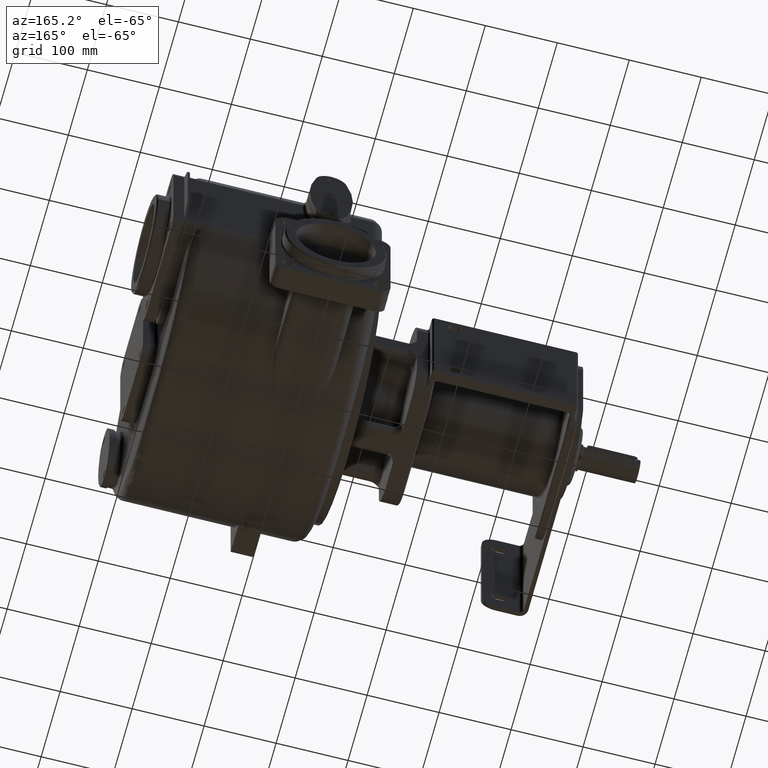
[diagram: clean part render]
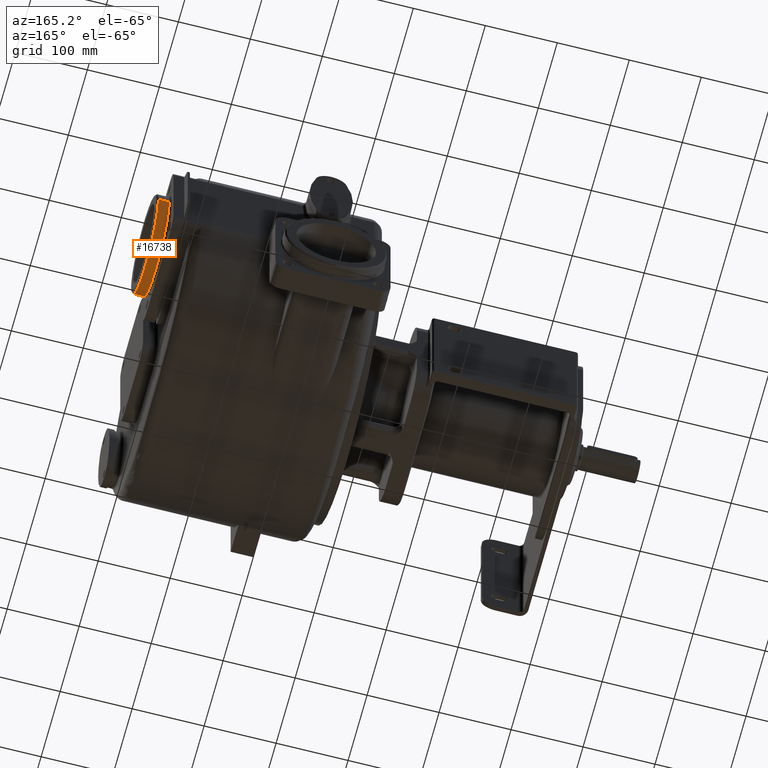
[diagram: same view with one face highlighted and labeled with its STEP entity id]
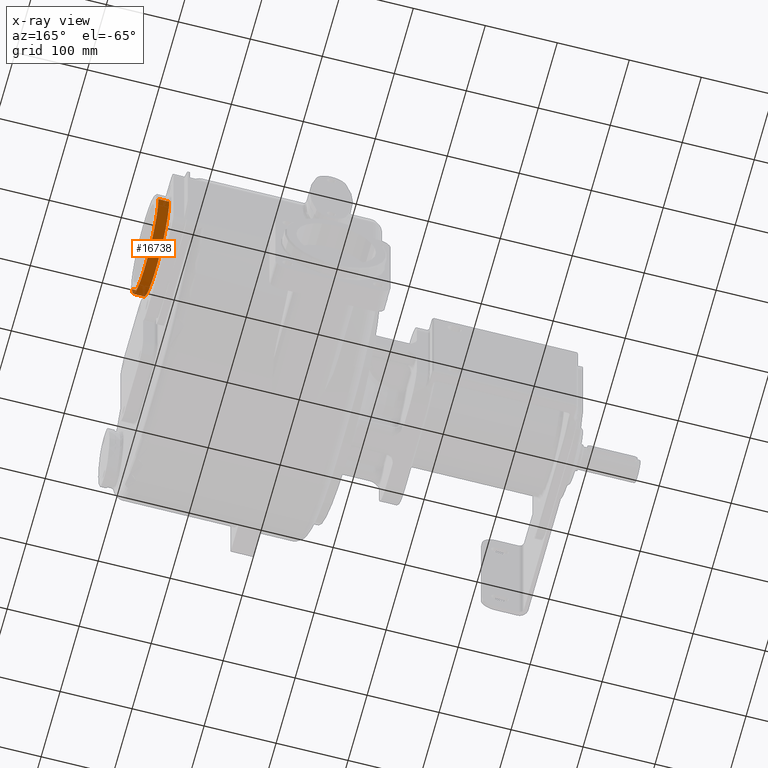
[diagram: x-ray of the same camera — body ghosted, the highlighted face saturated]
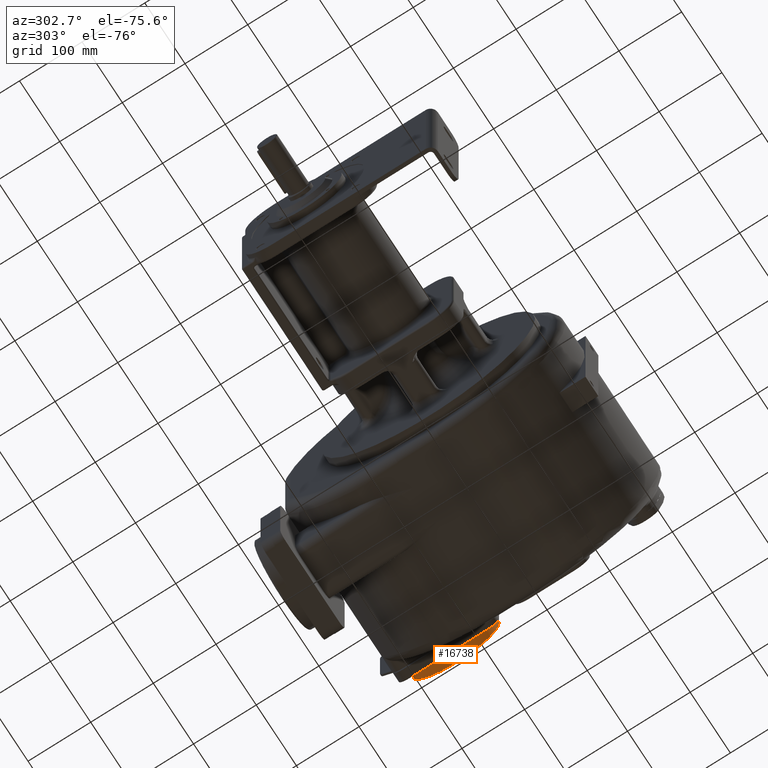
[diagram: same view with one face highlighted and labeled with its STEP entity id]
A machine part, auxiliary view. The second image highlights one B-rep face of the part: STEP entity #16738.
The next image is the same camera in x-ray: the body ghosted, the highlighted face saturated — about 0% of this face is hidden behind the body in this view.
A second angle (auxiliary view) of the same face is appended — the face is thin or edge-on in the first view.
In plain terms, the highlighted cylindrical surface (partial cylindrical patch) has radius 69 mm, axis along (1, 0, 0).
Its self-contained STEP definition (entity closure, byte-faithful):
#4603=CARTESIAN_POINT('',(2.16E2,3.65E2,-1.7E1));
#4604=DIRECTION('',(-1.E0,0.E0,0.E0));
#4605=DIRECTION('',(0.E0,1.E0,0.E0));
#4606=AXIS2_PLACEMENT_3D('',#4603,#4604,#4605);
#4608=CARTESIAN_POINT('',(2.31E2,3.65E2,-1.7E1));
#4609=DIRECTION('',(1.E0,0.E0,0.E0));
#4610=DIRECTION('',(0.E0,-1.E0,0.E0));
#4611=AXIS2_PLACEMENT_3D('',#4608,#4609,#4610);
#4613=DIRECTION('',(-1.E0,0.E0,0.E0));
#4614=VECTOR('',#4613,1.5E1);
#4615=CARTESIAN_POINT('',(2.31E2,4.34E2,-1.7E1));
#4616=LINE('',#4615,#4614);
#4617=DIRECTION('',(-1.E0,0.E0,0.E0));
#4618=VECTOR('',#4617,1.5E1);
#4619=CARTESIAN_POINT('',(2.31E2,2.96E2,-1.7E1));
#4620=LINE('',#4619,#4618);
#10321=CARTESIAN_POINT('',(2.16E2,4.34E2,-1.7E1));
#10323=VERTEX_POINT('',#10321);
#10325=CARTESIAN_POINT('',(2.16E2,2.96E2,-1.7E1));
#10327=VERTEX_POINT('',#10325);
#10361=CARTESIAN_POINT('',(2.31E2,4.34E2,-1.7E1));
#10362=CARTESIAN_POINT('',(2.31E2,2.96E2,-1.7E1));
#10363=VERTEX_POINT('',#10361);
#10364=VERTEX_POINT('',#10362);
#16724=CARTESIAN_POINT('',(1.7525E2,3.65E2,-1.7E1));
#16725=DIRECTION('',(1.E0,0.E0,0.E0));
#16726=DIRECTION('',(0.E0,1.E0,0.E0));
#16727=AXIS2_PLACEMENT_3D('',#16724,#16725,#16726);
#16728=CYLINDRICAL_SURFACE('',#16727,6.9E1);
#16730=ORIENTED_EDGE('',*,*,#16729,.T.);
#16732=ORIENTED_EDGE('',*,*,#16731,.T.);
#16733=ORIENTED_EDGE('',*,*,#16719,.T.);
#16735=ORIENTED_EDGE('',*,*,#16734,.F.);
#16736=EDGE_LOOP('',(#16730,#16732,#16733,#16735));
#16737=FACE_OUTER_BOUND('',#16736,.F.);
#16738=ADVANCED_FACE('',(#16737),#16728,.T.);
#4607=CIRCLE('',#4606,6.9E1);
#4612=CIRCLE('',#4611,6.9E1);
#16719=EDGE_CURVE('',#10323,#10327,#4607,.T.);
#16729=EDGE_CURVE('',#10364,#10363,#4612,.T.);
#16731=EDGE_CURVE('',#10363,#10323,#4616,.T.);
#16734=EDGE_CURVE('',#10364,#10327,#4620,.T.);